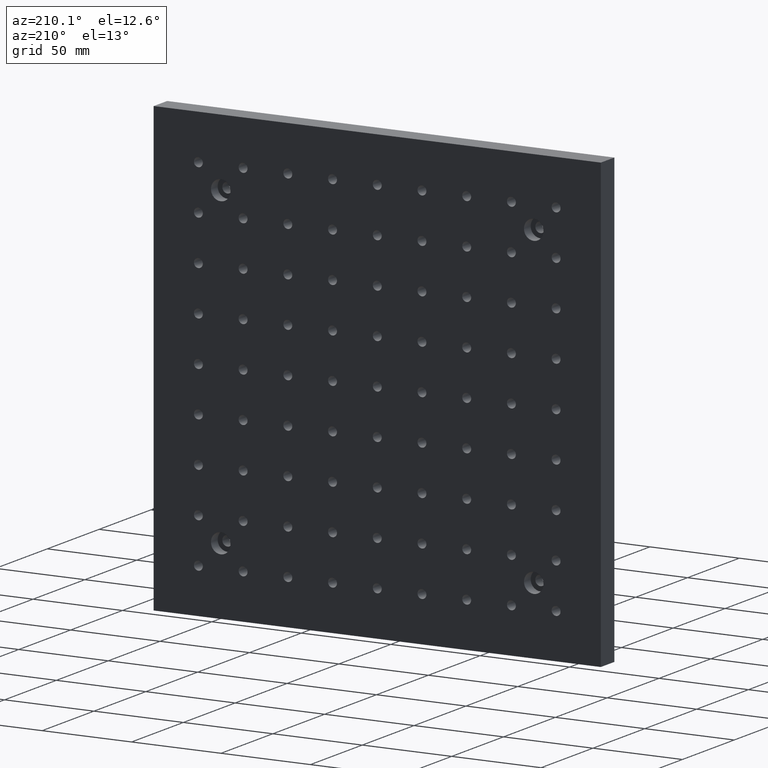
[diagram: clean part render]
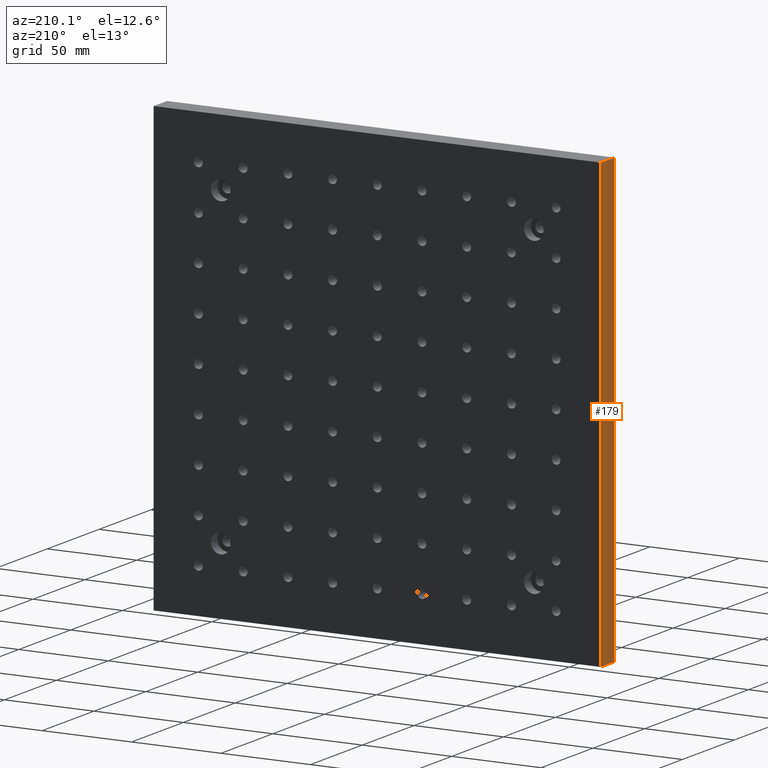
[diagram: same view with one face highlighted and labeled with its STEP entity id]
A machine part, auxiliary view. The second image highlights one B-rep face of the part: STEP entity #179.
In plain terms, the highlighted planar face has unit normal (1, 0, -0).
Its self-contained STEP definition (entity closure, byte-faithful):
#179 = ADVANCED_FACE ( 'NONE', ( #1180 ), #2951, .F. ) ;
#219 = VECTOR ( 'NONE', #1928, 1000.000000000000000 ) ;
#334 = ORIENTED_EDGE ( 'NONE', *, *, #3000, .T. ) ;
#586 = VERTEX_POINT ( 'NONE', #1772 ) ;
#603 = EDGE_CURVE ( 'NONE', #586, #2836, #3079, .T. ) ;
#684 = DIRECTION ( 'NONE',  ( 1.000000000000000000, 0.000000000000000000, -1.110223024625156540E-16 ) ) ;
#721 = CARTESIAN_POINT ( 'NONE',  ( -125.0000000000000284, 13.00000000000000178, -125.0000000000000000 ) ) ;
#816 = EDGE_CURVE ( 'NONE', #1669, #2836, #1347, .T. ) ;
#950 = LINE ( 'NONE', #3223, #2557 ) ;
#991 = CARTESIAN_POINT ( 'NONE',  ( -125.0000000000000000, 13.00000000000000178, 125.0000000000000000 ) ) ;
#1036 = ORIENTED_EDGE ( 'NONE', *, *, #816, .F. ) ;
#1158 = VECTOR ( 'NONE', #1331, 1000.000000000000000 ) ;
#1180 = FACE_OUTER_BOUND ( 'NONE', #1533, .T. ) ;
#1196 = DIRECTION ( 'NONE',  ( -1.110223024625156540E-16, 0.000000000000000000, -1.000000000000000000 ) ) ;
#1331 = DIRECTION ( 'NONE',  ( 0.000000000000000000, -0.000000000000000000, 1.000000000000000000 ) ) ;
#1347 = LINE ( 'NONE', #2591, #1158 ) ;
#1397 = ORIENTED_EDGE ( 'NONE', *, *, #603, .T. ) ;
#1476 = AXIS2_PLACEMENT_3D ( 'NONE', #2197, #684, #1196 ) ;
#1479 = VECTOR ( 'NONE', #2306, 1000.000000000000000 ) ;
#1533 = EDGE_LOOP ( 'NONE', ( #1397, #1036, #2980, #334 ) ) ;
#1547 = EDGE_CURVE ( 'NONE', #2095, #1669, #1944, .T. ) ;
#1669 = VERTEX_POINT ( 'NONE', #2542 ) ;
#1772 = CARTESIAN_POINT ( 'NONE',  ( -125.0000000000000000, 0.000000000000000000, 125.0000000000000000 ) ) ;
#1837 = CARTESIAN_POINT ( 'NONE',  ( -125.0000000000000284, 0.000000000000000000, -125.0000000000000000 ) ) ;
#1928 = DIRECTION ( 'NONE',  ( 0.000000000000000000, 1.000000000000000000, 0.000000000000000000 ) ) ;
#1944 = LINE ( 'NONE', #721, #219 ) ;
#2095 = VERTEX_POINT ( 'NONE', #1837 ) ;
#2197 = CARTESIAN_POINT ( 'NONE',  ( -125.0000000000000284, 13.00000000000000178, -125.0000000000000000 ) ) ;
#2306 = DIRECTION ( 'NONE',  ( 0.000000000000000000, 1.000000000000000000, 0.000000000000000000 ) ) ;
#2542 = CARTESIAN_POINT ( 'NONE',  ( -125.0000000000000284, 13.00000000000000178, -125.0000000000000000 ) ) ;
#2557 = VECTOR ( 'NONE', #3207, 1000.000000000000000 ) ;
#2591 = CARTESIAN_POINT ( 'NONE',  ( -125.0000000000000284, 13.00000000000000178, 0.000000000000000000 ) ) ;
#2779 = CARTESIAN_POINT ( 'NONE',  ( -125.0000000000000000, 13.00000000000000178, 125.0000000000000000 ) ) ;
#2836 = VERTEX_POINT ( 'NONE', #991 ) ;
#2951 = PLANE ( 'NONE',  #1476 ) ;
#2980 = ORIENTED_EDGE ( 'NONE', *, *, #1547, .F. ) ;
#3000 = EDGE_CURVE ( 'NONE', #2095, #586, #950, .T. ) ;
#3079 = LINE ( 'NONE', #2779, #1479 ) ;
#3207 = DIRECTION ( 'NONE',  ( 1.110223024625156540E-16, -0.000000000000000000, 1.000000000000000000 ) ) ;
#3223 = CARTESIAN_POINT ( 'NONE',  ( -125.0000000000000284, 0.000000000000000000, -125.0000000000000000 ) ) ;